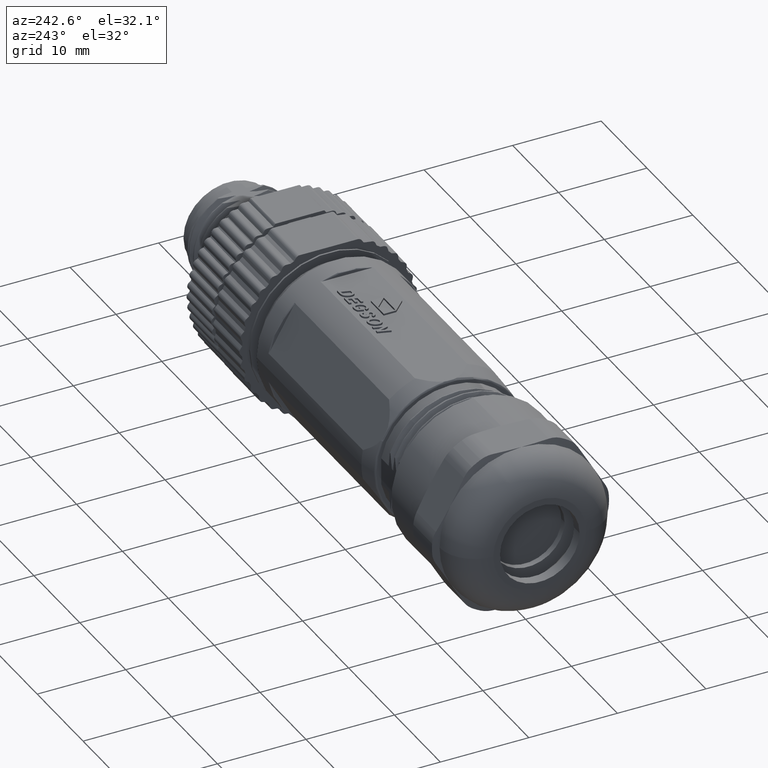
[diagram: clean part render]
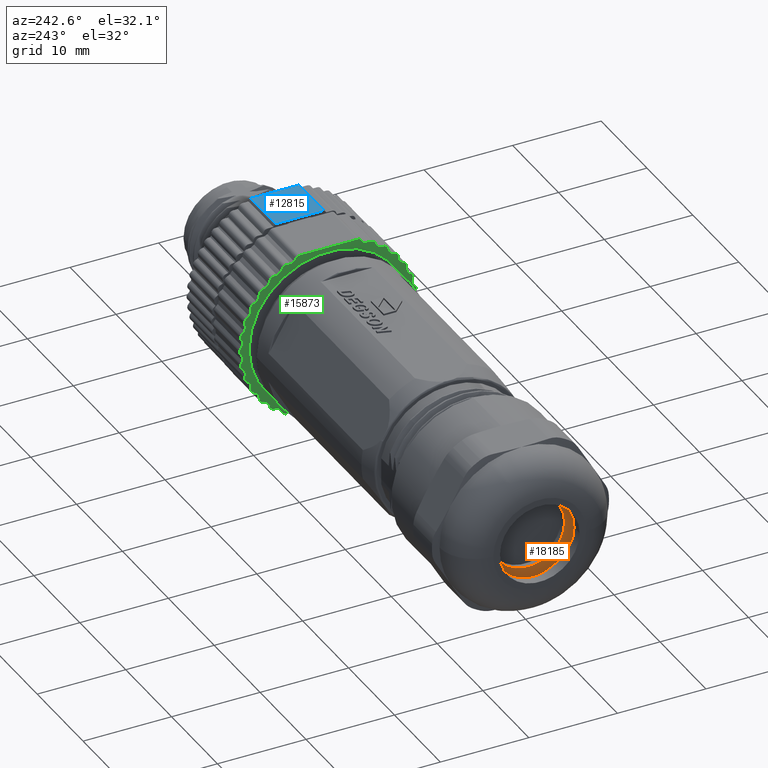
[diagram: same view with three faces highlighted in distinct colors, each labeled with its STEP entity id]
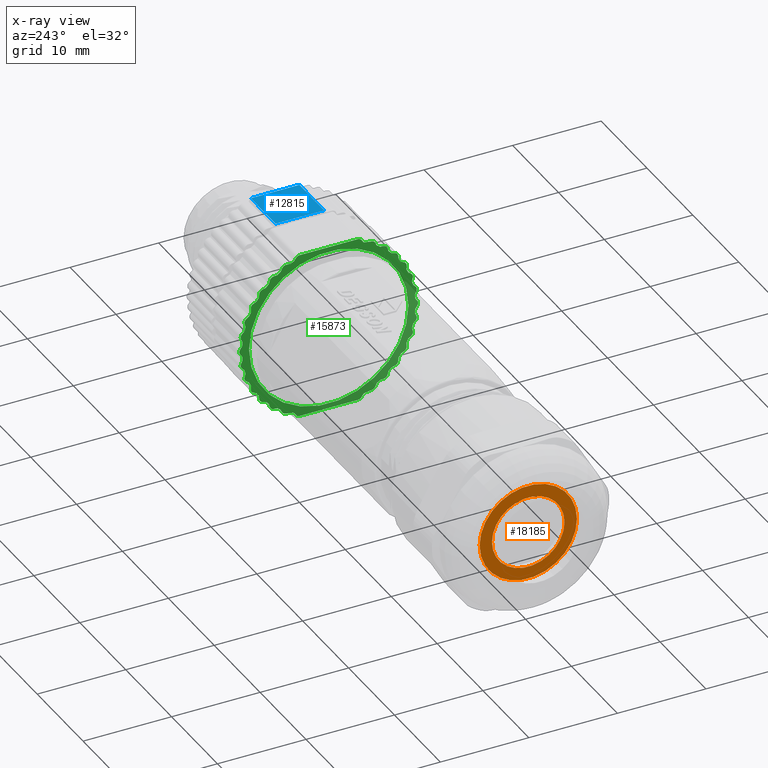
[diagram: x-ray of the same camera — body ghosted, the three highlighted faces saturated]
A machine part, auxiliary view with three faces highlighted in distinct colors.
The next image is the same camera in x-ray (body ghosted, the three faces saturated) — at least one of them is partly hidden behind the body in this view.
Their STEP definitions:

[orange] entity #18185 — the highlighted planar face has unit normal (-1, 0, 0).
#5383=CARTESIAN_POINT('',(-4.057843125851E1,0.E0,0.E0));
#5384=DIRECTION('',(1.E0,0.E0,0.E0));
#5385=DIRECTION('',(0.E0,-1.E0,0.E0));
#5386=AXIS2_PLACEMENT_3D('',#5383,#5384,#5385);
#5397=CARTESIAN_POINT('',(-4.057843125851E1,0.E0,0.E0));
#5398=DIRECTION('',(-1.E0,0.E0,0.E0));
#5399=DIRECTION('',(0.E0,-1.E0,0.E0));
#5400=AXIS2_PLACEMENT_3D('',#5397,#5398,#5399);
#5402=CARTESIAN_POINT('',(-4.057843125851E1,0.E0,0.E0));
#5403=DIRECTION('',(1.E0,0.E0,0.E0));
#5404=DIRECTION('',(0.E0,-1.E0,0.E0));
#5405=AXIS2_PLACEMENT_3D('',#5402,#5403,#5404);
#5407=CARTESIAN_POINT('',(-4.057843125851E1,0.E0,0.E0));
#5408=DIRECTION('',(-1.E0,0.E0,0.E0));
#5409=DIRECTION('',(0.E0,-1.E0,0.E0));
#5410=AXIS2_PLACEMENT_3D('',#5407,#5408,#5409);
#11451=CARTESIAN_POINT('',(-4.057843125851E1,-4.1E0,0.E0));
#11452=CARTESIAN_POINT('',(-4.057843125851E1,4.1E0,0.E0));
#11453=VERTEX_POINT('',#11451);
#11454=VERTEX_POINT('',#11452);
#11455=CARTESIAN_POINT('',(-4.057843125851E1,-5.5E0,0.E0));
#11456=CARTESIAN_POINT('',(-4.057843125851E1,5.5E0,0.E0));
#11457=VERTEX_POINT('',#11455);
#11458=VERTEX_POINT('',#11456);
#18170=CARTESIAN_POINT('',(-4.057843125851E1,0.E0,0.E0));
#18171=DIRECTION('',(-1.E0,0.E0,0.E0));
#18172=DIRECTION('',(0.E0,1.E0,0.E0));
#18173=AXIS2_PLACEMENT_3D('',#18170,#18171,#18172);
#18174=PLANE('',#18173);
#18175=ORIENTED_EDGE('',*,*,#18164,.F.);
#18176=ORIENTED_EDGE('',*,*,#18150,.T.);
#18177=EDGE_LOOP('',(#18175,#18176));
#18178=FACE_OUTER_BOUND('',#18177,.F.);
#18180=ORIENTED_EDGE('',*,*,#18179,.F.);
#18182=ORIENTED_EDGE('',*,*,#18181,.T.);
#18183=EDGE_LOOP('',(#18180,#18182));
#18184=FACE_BOUND('',#18183,.F.);
#18185=ADVANCED_FACE('',(#18178,#18184),#18174,.T.);
#5387=CIRCLE('',#5386,5.5E0);
#5401=CIRCLE('',#5400,5.5E0);
#5406=CIRCLE('',#5405,4.1E0);
#5411=CIRCLE('',#5410,4.1E0);
#18150=EDGE_CURVE('',#11457,#11458,#5387,.T.);
#18164=EDGE_CURVE('',#11457,#11458,#5401,.T.);
#18179=EDGE_CURVE('',#11453,#11454,#5406,.T.);
#18181=EDGE_CURVE('',#11453,#11454,#5411,.T.);

[blue] entity #12815 — the highlighted planar face has unit normal (0, 0, -1).
#932=DIRECTION('',(0.E0,-1.E0,0.E0));
#933=VECTOR('',#932,5.491095777550E0);
#934=CARTESIAN_POINT('',(1.462156874149E1,2.745547888775E0,9.586870070337E0));
#935=LINE('',#934,#933);
#1468=DIRECTION('',(0.E0,-1.E0,0.E0));
#1469=VECTOR('',#1468,5.491095777550E0);
#1470=CARTESIAN_POINT('',(9.221568741490E0,2.745547888775E0,9.586870070337E0));
#1471=LINE('',#1470,#1469);
#2867=DIRECTION('',(-1.E0,0.E0,0.E0));
#2868=VECTOR('',#2867,5.4E0);
#2869=CARTESIAN_POINT('',(1.462156874149E1,-2.745547888775E0,9.586870070337E0));
#2870=LINE('',#2869,#2868);
#2938=DIRECTION('',(-1.E0,0.E0,0.E0));
#2939=VECTOR('',#2938,5.4E0);
#2940=CARTESIAN_POINT('',(1.462156874149E1,2.745547888775E0,9.586870070337E0));
#2941=LINE('',#2940,#2939);
#10643=CARTESIAN_POINT('',(1.462156874149E1,2.745547888775E0,9.586870070337E0));
#10644=CARTESIAN_POINT('',(1.462156874149E1,-2.745547888775E0,
9.586870070337E0));
#10645=VERTEX_POINT('',#10643);
#10646=VERTEX_POINT('',#10644);
#10791=CARTESIAN_POINT('',(9.221568741490E0,-2.745547888775E0,
9.586870070337E0));
#10792=VERTEX_POINT('',#10791);
#10961=CARTESIAN_POINT('',(9.221568741490E0,2.745547888775E0,9.586870070337E0));
#10963=VERTEX_POINT('',#10961);
#12801=CARTESIAN_POINT('',(9.021568741490E0,2.745547888775E0,9.586870070337E0));
#12802=DIRECTION('',(0.E0,0.E0,-1.E0));
#12803=DIRECTION('',(0.E0,-1.E0,0.E0));
#12804=AXIS2_PLACEMENT_3D('',#12801,#12802,#12803);
#12805=PLANE('',#12804);
#12807=ORIENTED_EDGE('',*,*,#12806,.F.);
#12809=ORIENTED_EDGE('',*,*,#12808,.F.);
#12810=ORIENTED_EDGE('',*,*,#12481,.T.);
#12812=ORIENTED_EDGE('',*,*,#12811,.T.);
#12813=EDGE_LOOP('',(#12807,#12809,#12810,#12812));
#12814=FACE_OUTER_BOUND('',#12813,.F.);
#12815=ADVANCED_FACE('',(#12814),#12805,.F.);
#12481=EDGE_CURVE('',#10645,#10646,#935,.T.);
#12806=EDGE_CURVE('',#10963,#10792,#1471,.T.);
#12808=EDGE_CURVE('',#10645,#10963,#2941,.T.);
#12811=EDGE_CURVE('',#10646,#10792,#2870,.T.);

[green] entity #15873 — the highlighted planar face has unit normal (1, 0, 0).
#3468=DIRECTION('',(0.E0,1.E0,0.E0));
#3469=VECTOR('',#3468,6.566786751853E0);
#3470=CARTESIAN_POINT('',(2.921568741490E0,-3.283393375926E0,9.521049159545E0));
#3471=LINE('',#3470,#3469);
#3480=CARTESIAN_POINT('',(2.921568741490E0,-3.283393375926E0,9.021049159545E0));
#3481=DIRECTION('',(-1.E0,0.E0,0.E0));
#3482=DIRECTION('',(0.E0,-8.191520442890E-1,5.735764363511E-1));
#3483=AXIS2_PLACEMENT_3D('',#3480,#3481,#3482);
#3485=DIRECTION('',(0.E0,5.735764363510E-1,8.191520442890E-1));
#3486=VECTOR('',#3485,3.989027154871E-1);
#3487=CARTESIAN_POINT('',(2.921568741490E0,-3.921770596071E0,8.981075402857E0));
#3488=LINE('',#3487,#3486);
#3489=DIRECTION('',(0.E0,9.884683741599E-1,1.514274522195E-1));
#3490=VECTOR('',#3489,7.018331432283E-1);
#3491=CARTESIAN_POINT('',(2.921568741490E0,-4.756422128626E0,8.811941225376E0));
#3492=LINE('',#3491,#3490);
#3493=CARTESIAN_POINT('',(2.921568741490E0,-4.8E0,8.313843876331E0));
#3494=DIRECTION('',(-1.E0,0.E0,0.E0));
#3495=DIRECTION('',(0.E0,-9.063077870366E-1,4.226182617408E-1));
#3496=AXIS2_PLACEMENT_3D('',#3493,#3494,#3495);
#3498=DIRECTION('',(0.E0,4.226182617407E-1,9.063077870367E-1));
#3499=VECTOR('',#3498,3.989027154871E-1);
#3500=CARTESIAN_POINT('',(2.921568741490E0,-5.421737465741E0,8.163624369885E0));
#3501=LINE('',#3500,#3499);
#3502=DIRECTION('',(0.E0,9.961946980917E-1,8.715574274765E-2));
#3503=VECTOR('',#3502,3.989027154871E-1);
#3504=CARTESIAN_POINT('',(2.921568741490E0,-6.214338924365E0,7.852124002988E0));
#3505=LINE('',#3504,#3503);
#3506=CARTESIAN_POINT('',(2.921568741490E0,-6.170761052991E0,7.354026653942E0));
#3507=DIRECTION('',(-1.E0,0.E0,0.E0));
#3508=DIRECTION('',(0.E0,-9.659258262891E-1,2.588190451026E-1));
#3509=AXIS2_PLACEMENT_3D('',#3506,#3507,#3508);
#3511=DIRECTION('',(0.E0,2.588190451025E-1,9.659258262891E-1));
#3512=VECTOR('',#3511,3.989027154871E-1);
#3513=CARTESIAN_POINT('',(2.921568741490E0,-6.756967586047E0,7.098125741428E0));
#3514=LINE('',#3513,#3512);
#3515=DIRECTION('',(0.E0,9.659258262891E-1,2.588190451025E-1));
#3516=VECTOR('',#3515,3.989027154871E-1);
#3517=CARTESIAN_POINT('',(2.921568741490E0,-7.483436176493E0,6.653723966135E0));
#3518=LINE('',#3517,#3516);
#3519=CARTESIAN_POINT('',(2.921568741490E0,-7.354026653942E0,6.170761052991E0));
#3520=DIRECTION('',(-1.E0,0.E0,0.E0));
#3521=DIRECTION('',(0.E0,-9.961946980917E-1,8.715574274770E-2));
#3522=AXIS2_PLACEMENT_3D('',#3519,#3520,#3521);
#3524=DIRECTION('',(0.E0,8.715574274766E-2,9.961946980917E-1));
#3525=VECTOR('',#3524,3.989027154871E-1);
#3526=CARTESIAN_POINT('',(2.921568741490E0,-7.886890665440E0,5.816954154142E0));
#3527=LINE('',#3526,#3525);
#3528=DIRECTION('',(0.E0,9.063077870366E-1,4.226182617407E-1));
#3529=VECTOR('',#3528,3.989027154871E-1);
#3530=CARTESIAN_POINT('',(2.921568741490E0,-8.525153007201E0,5.253153893518E0));
#3531=LINE('',#3530,#3529);
#3532=CARTESIAN_POINT('',(2.921568741490E0,-8.313843876331E0,4.8E0));
#3533=DIRECTION('',(-1.E0,0.E0,0.E0));
#3534=DIRECTION('',(0.E0,-9.961946980917E-1,-8.715574274762E-2));
#3535=AXIS2_PLACEMENT_3D('',#3532,#3533,#3534);
#3537=DIRECTION('',(0.E0,-8.715574274766E-2,9.961946980917E-1));
#3538=VECTOR('',#3537,3.989027154871E-1);
#3539=CARTESIAN_POINT('',(2.921568741490E0,-8.777174562924E0,4.359037358403E0));
#3540=LINE('',#3539,#3538);
#3541=DIRECTION('',(0.E0,8.191520442890E-1,5.735764363510E-1));
#3542=VECTOR('',#3541,3.989027154871E-1);
#3543=CARTESIAN_POINT('',(2.921568741490E0,-9.307837377720E0,3.692969398071E0));
#3544=LINE('',#3543,#3542);
#3545=CARTESIAN_POINT('',(2.921568741490E0,-9.021049159545E0,3.283393375926E0));
#3546=DIRECTION('',(-1.E0,0.E0,0.E0));
#3547=DIRECTION('',(0.E0,-9.659258262891E-1,-2.588190451025E-1));
#3548=AXIS2_PLACEMENT_3D('',#3545,#3546,#3547);
#3550=DIRECTION('',(0.E0,-2.588190451025E-1,9.659258262891E-1));
#3551=VECTOR('',#3550,3.989027154871E-1);
#3552=CARTESIAN_POINT('',(2.921568741490E0,-9.400768452778E0,2.768673418309E0));
#3553=LINE('',#3552,#3551);
#3554=DIRECTION('',(0.E0,7.071067811865E-1,7.071067811865E-1));
#3555=VECTOR('',#3554,3.989027154871E-1);
#3556=CARTESIAN_POINT('',(2.921568741490E0,-9.807707819510E0,2.020575896196E0));
#3557=LINE('',#3556,#3555);
#3558=CARTESIAN_POINT('',(2.921568741490E0,-9.454154428917E0,1.667022505603E0));
#3559=DIRECTION('',(-1.E0,0.E0,0.E0));
#3560=DIRECTION('',(0.E0,-9.063077870367E-1,-4.226182617407E-1));
#3561=AXIS2_PLACEMENT_3D('',#3558,#3559,#3560);
#3563=DIRECTION('',(0.E0,-4.226182617407E-1,9.063077870366E-1));
#3564=VECTOR('',#3563,3.989027154871E-1);
#3565=CARTESIAN_POINT('',(2.921568741490E0,-9.738724750213E0,1.094184737416E0));
#3566=LINE('',#3565,#3564);
#3567=DIRECTION('',(0.E0,5.735764363510E-1,8.191520442890E-1));
#3568=VECTOR('',#3567,3.989027154871E-1);
#3569=CARTESIAN_POINT('',(2.921568741490E0,-1.000957602214E1,
2.867882181755E-1));
#3570=LINE('',#3569,#3568);
#3571=CARTESIAN_POINT('',(2.921568741490E0,-9.6E0,-1.476840843907E-14));
#3572=DIRECTION('',(-1.E0,0.E0,0.E0));
#3573=DIRECTION('',(0.E0,-8.191520442890E-1,-5.735764363510E-1));
#3574=AXIS2_PLACEMENT_3D('',#3571,#3572,#3573);
#3576=DIRECTION('',(0.E0,-5.735764363510E-1,8.191520442890E-1));
#3577=VECTOR('',#3576,3.989027154871E-1);
#3578=CARTESIAN_POINT('',(2.921568741490E0,-9.780774824145E0,
-6.135501930392E-1));
#3579=LINE('',#3578,#3577);
#3580=DIRECTION('',(0.E0,4.226182617407E-1,9.063077870366E-1));
#3581=VECTOR('',#3580,3.989027154871E-1);
#3582=CARTESIAN_POINT('',(2.921568741490E0,-9.907308322436E0,
-1.455713374732E0));
#3583=LINE('',#3582,#3581);
#3584=CARTESIAN_POINT('',(2.921568741490E0,-9.454154428917E0,
-1.667022505603E0));
#3585=DIRECTION('',(-1.E0,0.E0,0.E0));
#3586=DIRECTION('',(0.E0,-7.071067811866E-1,-7.071067811865E-1));
#3587=AXIS2_PLACEMENT_3D('',#3584,#3585,#3586);
#3589=DIRECTION('',(0.E0,-7.071067811865E-1,7.071067811865E-1));
#3590=VECTOR('',#3589,3.989027154871E-1);
#3591=CARTESIAN_POINT('',(2.921568741490E0,-9.525641004356E0,
-2.302642711350E0));
#3592=LINE('',#3591,#3590);
#3593=DIRECTION('',(0.E0,2.588190451025E-1,9.659258262891E-1));
#3594=VECTOR('',#3593,3.989027154871E-1);
#3595=CARTESIAN_POINT('',(2.921568741490E0,-9.504012072689E0,
-3.153983853375E0));
#3596=LINE('',#3595,#3594);
#3597=CARTESIAN_POINT('',(2.921568741490E0,-9.021049159545E0,
-3.283393375926E0));
#3598=DIRECTION('',(-1.E0,0.E0,0.E0));
#3599=DIRECTION('',(0.E0,-5.735764363511E-1,-8.191520442890E-1));
#3600=AXIS2_PLACEMENT_3D('',#3597,#3598,#3599);
#3602=DIRECTION('',(0.E0,-8.191520442890E-1,5.735764363510E-1));
#3603=VECTOR('',#3602,3.989027154871E-1);
#3604=CARTESIAN_POINT('',(2.921568741490E0,-8.981075402857E0,
-3.921770596071E0));
#3605=LINE('',#3604,#3603);
#3606=DIRECTION('',(0.E0,8.715574274766E-2,9.961946980917E-1));
#3607=VECTOR('',#3606,3.989027154871E-1);
#3608=CARTESIAN_POINT('',(2.921568741490E0,-8.811941225376E0,
-4.756422128626E0));
#3609=LINE('',#3608,#3607);
#3610=CARTESIAN_POINT('',(2.921568741490E0,-8.313843876331E0,-4.8E0));
#3611=DIRECTION('',(-1.E0,0.E0,0.E0));
#3612=DIRECTION('',(0.E0,-4.226182617408E-1,-9.063077870366E-1));
#3613=AXIS2_PLACEMENT_3D('',#3610,#3611,#3612);
#3615=DIRECTION('',(0.E0,-9.063077870367E-1,4.226182617407E-1));
#3616=VECTOR('',#3615,3.989027154871E-1);
#3617=CARTESIAN_POINT('',(2.921568741490E0,-8.163624369885E0,
-5.421737465741E0));
#3618=LINE('',#3617,#3616);
#3619=DIRECTION('',(0.E0,-8.715574274766E-2,9.961946980917E-1));
#3620=VECTOR('',#3619,3.989027154871E-1);
#3621=CARTESIAN_POINT('',(2.921568741490E0,-7.852124002988E0,
-6.214338924365E0));
#3622=LINE('',#3621,#3620);
#3623=CARTESIAN_POINT('',(2.921568741490E0,-7.354026653942E0,
-6.170761052991E0));
#3624=DIRECTION('',(-1.E0,0.E0,0.E0));
#3625=DIRECTION('',(0.E0,-2.588190451026E-1,-9.659258262891E-1));
#3626=AXIS2_PLACEMENT_3D('',#3623,#3624,#3625);
#3628=DIRECTION('',(0.E0,-9.659258262891E-1,2.588190451025E-1));
#3629=VECTOR('',#3628,3.989027154871E-1);
#3630=CARTESIAN_POINT('',(2.921568741490E0,-7.098125741428E0,
-6.756967586046E0));
#3631=LINE('',#3630,#3629);
#3632=DIRECTION('',(0.E0,-2.588190451025E-1,9.659258262891E-1));
#3633=VECTOR('',#3632,3.989027154871E-1);
#3634=CARTESIAN_POINT('',(2.921568741490E0,-6.653723966135E0,
-7.483436176493E0));
#3635=LINE('',#3634,#3633);
#3636=CARTESIAN_POINT('',(2.921568741490E0,-6.170761052991E0,
-7.354026653942E0));
#3637=DIRECTION('',(-1.E0,0.E0,0.E0));
#3638=DIRECTION('',(0.E0,-8.715574274770E-2,-9.961946980917E-1));
#3639=AXIS2_PLACEMENT_3D('',#3636,#3637,#3638);
#3641=DIRECTION('',(0.E0,-9.961946980917E-1,8.715574274765E-2));
#3642=VECTOR('',#3641,3.989027154871E-1);
#3643=CARTESIAN_POINT('',(2.921568741490E0,-5.816954154142E0,
-7.886890665440E0));
#3644=LINE('',#3643,#3642);
#3645=DIRECTION('',(0.E0,-4.226182617407E-1,9.063077870367E-1));
#3646=VECTOR('',#3645,3.989027154871E-1);
#3647=CARTESIAN_POINT('',(2.921568741490E0,-5.253153893518E0,
-8.525153007201E0));
#3648=LINE('',#3647,#3646);
#3649=CARTESIAN_POINT('',(2.921568741490E0,-4.8E0,-8.313843876331E0));
#3650=DIRECTION('',(-1.E0,0.E0,0.E0));
#3651=DIRECTION('',(0.E0,8.715574274772E-2,-9.961946980917E-1));
#3652=AXIS2_PLACEMENT_3D('',#3649,#3650,#3651);
#3654=DIRECTION('',(0.E0,-9.884683741599E-1,1.514274522195E-1));
#3655=VECTOR('',#3654,7.018331432282E-1);
#3656=CARTESIAN_POINT('',(2.921568741490E0,-4.062682262608E0,
-8.918218030139E0));
#3657=LINE('',#3656,#3655);
#3658=DIRECTION('',(0.E0,-5.735764363510E-1,8.191520442890E-1));
#3659=VECTOR('',#3658,3.989027154871E-1);
#3660=CARTESIAN_POINT('',(2.921568741490E0,-3.692969398071E0,
-9.307837377720E0));
#3661=LINE('',#3660,#3659);
#3662=CARTESIAN_POINT('',(2.921568741490E0,-3.283393375926E0,
-9.021049159545E0));
#3663=DIRECTION('',(-1.E0,0.E0,0.E0));
#3664=DIRECTION('',(0.E0,-2.069455717901E-13,-1.E0));
#3665=AXIS2_PLACEMENT_3D('',#3662,#3663,#3664);
#3667=CARTESIAN_POINT('',(2.921568741490E0,3.283393375926E0,-9.021049159545E0));
#3668=DIRECTION('',(-1.E0,0.E0,0.E0));
#3669=DIRECTION('',(0.E0,8.191520442890E-1,-5.735764363511E-1));
#3670=AXIS2_PLACEMENT_3D('',#3667,#3668,#3669);
#3672=DIRECTION('',(0.E0,-5.735764363510E-1,-8.191520442890E-1));
#3673=VECTOR('',#3672,3.989027154871E-1);
#3674=CARTESIAN_POINT('',(2.921568741490E0,3.921770596071E0,-8.981075402857E0));
#3675=LINE('',#3674,#3673);
#3676=DIRECTION('',(0.E0,-9.884683741599E-1,-1.514274522195E-1));
#3677=VECTOR('',#3676,7.018331432283E-1);
#3678=CARTESIAN_POINT('',(2.921568741490E0,4.756422128626E0,-8.811941225376E0));
#3679=LINE('',#3678,#3677);
#3680=CARTESIAN_POINT('',(2.921568741490E0,4.8E0,-8.313843876331E0));
#3681=DIRECTION('',(-1.E0,0.E0,0.E0));
#3682=DIRECTION('',(0.E0,9.063077870366E-1,-4.226182617407E-1));
#3683=AXIS2_PLACEMENT_3D('',#3680,#3681,#3682);
#3685=DIRECTION('',(0.E0,-4.226182617407E-1,-9.063077870366E-1));
#3686=VECTOR('',#3685,3.989027154871E-1);
#3687=CARTESIAN_POINT('',(2.921568741490E0,5.421737465741E0,-8.163624369885E0));
#3688=LINE('',#3687,#3686);
#3689=DIRECTION('',(0.E0,-9.961946980917E-1,-8.715574274765E-2));
#3690=VECTOR('',#3689,3.989027154871E-1);
#3691=CARTESIAN_POINT('',(2.921568741490E0,6.214338924365E0,-7.852124002988E0));
#3692=LINE('',#3691,#3690);
#3693=CARTESIAN_POINT('',(2.921568741490E0,6.170761052991E0,-7.354026653942E0));
#3694=DIRECTION('',(-1.E0,0.E0,0.E0));
#3695=DIRECTION('',(0.E0,9.659258262891E-1,-2.588190451026E-1));
#3696=AXIS2_PLACEMENT_3D('',#3693,#3694,#3695);
#3698=DIRECTION('',(0.E0,-2.588190451025E-1,-9.659258262891E-1));
#3699=VECTOR('',#3698,3.989027154871E-1);
#3700=CARTESIAN_POINT('',(2.921568741490E0,6.756967586046E0,-7.098125741428E0));
#3701=LINE('',#3700,#3699);
#3702=DIRECTION('',(0.E0,-9.659258262891E-1,-2.588190451025E-1));
#3703=VECTOR('',#3702,3.989027154871E-1);
#3704=CARTESIAN_POINT('',(2.921568741490E0,7.483436176493E0,-6.653723966135E0));
#3705=LINE('',#3704,#3703);
#3706=CARTESIAN_POINT('',(2.921568741490E0,7.354026653942E0,-6.170761052991E0));
#3707=DIRECTION('',(-1.E0,0.E0,0.E0));
#3708=DIRECTION('',(0.E0,9.961946980917E-1,-8.715574274770E-2));
#3709=AXIS2_PLACEMENT_3D('',#3706,#3707,#3708);
#3711=DIRECTION('',(0.E0,-8.715574274766E-2,-9.961946980917E-1));
#3712=VECTOR('',#3711,3.989027154871E-1);
#3713=CARTESIAN_POINT('',(2.921568741490E0,7.886890665440E0,-5.816954154142E0));
#3714=LINE('',#3713,#3712);
#3715=DIRECTION('',(0.E0,-9.063077870366E-1,-4.226182617407E-1));
#3716=VECTOR('',#3715,3.989027154871E-1);
#3717=CARTESIAN_POINT('',(2.921568741490E0,8.525153007201E0,-5.253153893518E0));
#3718=LINE('',#3717,#3716);
#3719=CARTESIAN_POINT('',(2.921568741490E0,8.313843876331E0,-4.8E0));
#3720=DIRECTION('',(-1.E0,0.E0,0.E0));
#3721=DIRECTION('',(0.E0,9.961946980917E-1,8.715574274762E-2));
#3722=AXIS2_PLACEMENT_3D('',#3719,#3720,#3721);
#3724=DIRECTION('',(0.E0,8.715574274767E-2,-9.961946980917E-1));
#3725=VECTOR('',#3724,3.989027154871E-1);
#3726=CARTESIAN_POINT('',(2.921568741490E0,8.777174562924E0,-4.359037358403E0));
#3727=LINE('',#3726,#3725);
#3728=DIRECTION('',(0.E0,-8.191520442890E-1,-5.735764363510E-1));
#3729=VECTOR('',#3728,3.989027154871E-1);
#3730=CARTESIAN_POINT('',(2.921568741490E0,9.307837377720E0,-3.692969398071E0));
#3731=LINE('',#3730,#3729);
#3732=CARTESIAN_POINT('',(2.921568741490E0,9.021049159545E0,-3.283393375926E0));
#3733=DIRECTION('',(-1.E0,0.E0,0.E0));
#3734=DIRECTION('',(0.E0,9.659258262891E-1,2.588190451025E-1));
#3735=AXIS2_PLACEMENT_3D('',#3732,#3733,#3734);
#3737=DIRECTION('',(0.E0,2.588190451025E-1,-9.659258262891E-1));
#3738=VECTOR('',#3737,3.989027154871E-1);
#3739=CARTESIAN_POINT('',(2.921568741490E0,9.400768452778E0,-2.768673418309E0));
#3740=LINE('',#3739,#3738);
#3741=DIRECTION('',(0.E0,-7.071067811865E-1,-7.071067811865E-1));
#3742=VECTOR('',#3741,3.989027154871E-1);
#3743=CARTESIAN_POINT('',(2.921568741490E0,9.807707819510E0,-2.020575896196E0));
#3744=LINE('',#3743,#3742);
#3745=CARTESIAN_POINT('',(2.921568741490E0,9.454154428917E0,-1.667022505603E0));
#3746=DIRECTION('',(-1.E0,0.E0,0.E0));
#3747=DIRECTION('',(0.E0,9.063077870367E-1,4.226182617407E-1));
#3748=AXIS2_PLACEMENT_3D('',#3745,#3746,#3747);
#3750=DIRECTION('',(0.E0,4.226182617407E-1,-9.063077870366E-1));
#3751=VECTOR('',#3750,3.989027154871E-1);
#3752=CARTESIAN_POINT('',(2.921568741490E0,9.738724750213E0,-1.094184737416E0));
#3753=LINE('',#3752,#3751);
#3754=DIRECTION('',(0.E0,-5.735764363510E-1,-8.191520442890E-1));
#3755=VECTOR('',#3754,3.989027154871E-1);
#3756=CARTESIAN_POINT('',(2.921568741490E0,1.000957602214E1,
-2.867882181755E-1));
#3757=LINE('',#3756,#3755);
#3758=CARTESIAN_POINT('',(2.921568741490E0,9.6E0,1.479290137505E-14));
#3759=DIRECTION('',(-1.E0,0.E0,0.E0));
#3760=DIRECTION('',(0.E0,8.191520442890E-1,5.735764363510E-1));
#3761=AXIS2_PLACEMENT_3D('',#3758,#3759,#3760);
#3763=DIRECTION('',(0.E0,5.735764363510E-1,-8.191520442890E-1));
#3764=VECTOR('',#3763,3.989027154871E-1);
#3765=CARTESIAN_POINT('',(2.921568741490E0,9.780774824145E0,6.135501930392E-1));
#3766=LINE('',#3765,#3764);
#3767=DIRECTION('',(0.E0,-4.226182617407E-1,-9.063077870366E-1));
#3768=VECTOR('',#3767,3.989027154871E-1);
#3769=CARTESIAN_POINT('',(2.921568741490E0,9.907308322436E0,1.455713374732E0));
#3770=LINE('',#3769,#3768);
#3771=CARTESIAN_POINT('',(2.921568741490E0,9.454154428917E0,1.667022505603E0));
#3772=DIRECTION('',(-1.E0,0.E0,0.E0));
#3773=DIRECTION('',(0.E0,7.071067811866E-1,7.071067811865E-1));
#3774=AXIS2_PLACEMENT_3D('',#3771,#3772,#3773);
#3776=DIRECTION('',(0.E0,7.071067811866E-1,-7.071067811865E-1));
#3777=VECTOR('',#3776,3.989027154871E-1);
#3778=CARTESIAN_POINT('',(2.921568741490E0,9.525641004356E0,2.302642711350E0));
#3779=LINE('',#3778,#3777);
#3780=DIRECTION('',(0.E0,-2.588190451025E-1,-9.659258262891E-1));
#3781=VECTOR('',#3780,3.989027154871E-1);
#3782=CARTESIAN_POINT('',(2.921568741490E0,9.504012072689E0,3.153983853375E0));
#3783=LINE('',#3782,#3781);
#3784=CARTESIAN_POINT('',(2.921568741490E0,9.021049159545E0,3.283393375926E0));
#3785=DIRECTION('',(-1.E0,0.E0,0.E0));
#3786=DIRECTION('',(0.E0,5.735764363511E-1,8.191520442890E-1));
#3787=AXIS2_PLACEMENT_3D('',#3784,#3785,#3786);
#3789=DIRECTION('',(0.E0,8.191520442890E-1,-5.735764363510E-1));
#3790=VECTOR('',#3789,3.989027154871E-1);
#3791=CARTESIAN_POINT('',(2.921568741490E0,8.981075402857E0,3.921770596071E0));
#3792=LINE('',#3791,#3790);
#3793=DIRECTION('',(0.E0,-8.715574274767E-2,-9.961946980917E-1));
#3794=VECTOR('',#3793,3.989027154871E-1);
#3795=CARTESIAN_POINT('',(2.921568741490E0,8.811941225376E0,4.756422128626E0));
#3796=LINE('',#3795,#3794);
#3797=CARTESIAN_POINT('',(2.921568741490E0,8.313843876331E0,4.8E0));
#3798=DIRECTION('',(-1.E0,0.E0,0.E0));
#3799=DIRECTION('',(0.E0,4.226182617408E-1,9.063077870366E-1));
#3800=AXIS2_PLACEMENT_3D('',#3797,#3798,#3799);
#3802=DIRECTION('',(0.E0,9.063077870367E-1,-4.226182617407E-1));
#3803=VECTOR('',#3802,3.989027154871E-1);
#3804=CARTESIAN_POINT('',(2.921568741490E0,8.163624369885E0,5.421737465741E0));
#3805=LINE('',#3804,#3803);
#3806=DIRECTION('',(0.E0,8.715574274766E-2,-9.961946980917E-1));
#3807=VECTOR('',#3806,3.989027154871E-1);
#3808=CARTESIAN_POINT('',(2.921568741490E0,7.852124002988E0,6.214338924365E0));
#3809=LINE('',#3808,#3807);
#3810=CARTESIAN_POINT('',(2.921568741490E0,7.354026653942E0,6.170761052991E0));
#3811=DIRECTION('',(-1.E0,0.E0,0.E0));
#3812=DIRECTION('',(0.E0,2.588190451026E-1,9.659258262891E-1));
#3813=AXIS2_PLACEMENT_3D('',#3810,#3811,#3812);
#3815=DIRECTION('',(0.E0,9.659258262891E-1,-2.588190451025E-1));
#3816=VECTOR('',#3815,3.989027154871E-1);
#3817=CARTESIAN_POINT('',(2.921568741490E0,7.098125741428E0,6.756967586046E0));
#3818=LINE('',#3817,#3816);
#3819=DIRECTION('',(0.E0,2.588190451025E-1,-9.659258262891E-1));
#3820=VECTOR('',#3819,3.989027154871E-1);
#3821=CARTESIAN_POINT('',(2.921568741490E0,6.653723966135E0,7.483436176493E0));
#3822=LINE('',#3821,#3820);
#3823=CARTESIAN_POINT('',(2.921568741490E0,6.170761052991E0,7.354026653942E0));
#3824=DIRECTION('',(-1.E0,0.E0,0.E0));
#3825=DIRECTION('',(0.E0,8.715574274770E-2,9.961946980917E-1));
#3826=AXIS2_PLACEMENT_3D('',#3823,#3824,#3825);
#3828=DIRECTION('',(0.E0,9.961946980917E-1,-8.715574274765E-2));
#3829=VECTOR('',#3828,3.989027154871E-1);
#3830=CARTESIAN_POINT('',(2.921568741490E0,5.816954154142E0,7.886890665440E0));
#3831=LINE('',#3830,#3829);
#3832=DIRECTION('',(0.E0,4.226182617407E-1,-9.063077870367E-1));
#3833=VECTOR('',#3832,3.989027154871E-1);
#3834=CARTESIAN_POINT('',(2.921568741490E0,5.253153893518E0,8.525153007201E0));
#3835=LINE('',#3834,#3833);
#3836=CARTESIAN_POINT('',(2.921568741490E0,4.8E0,8.313843876331E0));
#3837=DIRECTION('',(-1.E0,0.E0,0.E0));
#3838=DIRECTION('',(0.E0,-8.715574274742E-2,9.961946980918E-1));
#3839=AXIS2_PLACEMENT_3D('',#3836,#3837,#3838);
#3841=DIRECTION('',(0.E0,1.E0,0.E0));
#3842=VECTOR('',#3841,4.681017300890E-1);
#3843=CARTESIAN_POINT('',(2.921568741490E0,4.288320398537E0,8.811941225376E0));
#3844=LINE('',#3843,#3842);
#3845=DIRECTION('',(0.E0,5.735764363510E-1,-8.191520442890E-1));
#3846=VECTOR('',#3845,3.989027154871E-1);
#3847=CARTESIAN_POINT('',(2.921568741490E0,3.692969398071E0,9.307837377720E0));
#3848=LINE('',#3847,#3846);
#3849=CARTESIAN_POINT('',(2.921568741490E0,3.283393375926E0,9.021049159545E0));
#3850=DIRECTION('',(-1.E0,0.E0,0.E0));
#3851=DIRECTION('',(0.E0,5.684341886081E-14,1.E0));
#3852=AXIS2_PLACEMENT_3D('',#3849,#3850,#3851);
#3854=CARTESIAN_POINT('',(2.921568741490E0,0.E0,0.E0));
#3855=DIRECTION('',(-1.E0,0.E0,0.E0));
#3856=DIRECTION('',(0.E0,1.E0,0.E0));
#3857=AXIS2_PLACEMENT_3D('',#3854,#3855,#3856);
#3859=CARTESIAN_POINT('',(2.921568741490E0,0.E0,0.E0));
#3860=DIRECTION('',(-1.E0,0.E0,0.E0));
#3861=DIRECTION('',(0.E0,-1.E0,0.E0));
#3862=AXIS2_PLACEMENT_3D('',#3859,#3860,#3861);
#3868=CARTESIAN_POINT('',(2.921568741490E0,0.E0,0.E0));
#3869=DIRECTION('',(-1.E0,0.E0,0.E0));
#3870=DIRECTION('',(0.E0,-4.145594145518E-1,9.100222479733E-1));
#3871=AXIS2_PLACEMENT_3D('',#3868,#3869,#3870);
#3903=CARTESIAN_POINT('',(2.921568741490E0,0.E0,0.E0));
#3904=DIRECTION('',(-1.E0,0.E0,0.E0));
#3905=DIRECTION('',(0.E0,-5.935667504226E-1,8.047847617796E-1));
#3906=AXIS2_PLACEMENT_3D('',#3903,#3904,#3905);
#3929=CARTESIAN_POINT('',(2.921568741490E0,0.E0,0.E0));
#3930=DIRECTION('',(-1.E0,0.E0,0.E0));
#3931=DIRECTION('',(0.E0,-7.242985450436E-1,6.894864883721E-1));
#3932=AXIS2_PLACEMENT_3D('',#3929,#3930,#3931);
#3955=CARTESIAN_POINT('',(2.921568741490E0,0.E0,0.E0));
#3956=DIRECTION('',(-1.E0,0.E0,0.E0));
#3957=DIRECTION('',(0.E0,-8.330228948862E-1,5.532385169124E-1));
#3958=AXIS2_PLACEMENT_3D('',#3955,#3956,#3957);
#3981=CARTESIAN_POINT('',(2.921568741490E0,0.E0,0.E0));
#3982=DIRECTION('',(-1.E0,0.E0,0.E0));
#3983=DIRECTION('',(0.E0,-9.164362655976E-1,4.001806730684E-1));
#3984=AXIS2_PLACEMENT_3D('',#3981,#3982,#3983);
#4007=CARTESIAN_POINT('',(2.921568741490E0,0.E0,0.E0));
#4008=DIRECTION('',(-1.E0,0.E0,0.E0));
#4009=DIRECTION('',(0.E0,-9.720041841179E-1,2.349635419745E-1));
#4010=AXIS2_PLACEMENT_3D('',#4007,#4008,#4009);
#4033=CARTESIAN_POINT('',(2.921568741490E0,0.E0,0.E0));
#4034=DIRECTION('',(-1.E0,0.E0,0.E0));
#4035=DIRECTION('',(0.E0,-9.980382473617E-1,6.260716255502E-2));
#4036=AXIS2_PLACEMENT_3D('',#4033,#4034,#4035);
#4059=CARTESIAN_POINT('',(2.921568741490E0,0.E0,0.E0));
#4060=DIRECTION('',(-1.E0,0.E0,0.E0));
#4061=DIRECTION('',(0.E0,-9.937474234911E-1,-1.116515038180E-1));
#4062=AXIS2_PLACEMENT_3D('',#4059,#4060,#4061);
#4085=CARTESIAN_POINT('',(2.921568741490E0,0.E0,0.E0));
#4086=DIRECTION('',(-1.E0,0.E0,0.E0));
#4087=DIRECTION('',(0.E0,-9.592620870182E-1,-2.825176957458E-1));
#4088=AXIS2_PLACEMENT_3D('',#4085,#4086,#4087);
#4111=CARTESIAN_POINT('',(2.921568741490E0,0.E0,0.E0));
#4112=DIRECTION('',(-1.E0,0.E0,0.E0));
#4113=DIRECTION('',(0.E0,-8.956300574412E-1,-4.447997304493E-1));
#4114=AXIS2_PLACEMENT_3D('',#4111,#4112,#4113);
#4137=CARTESIAN_POINT('',(2.921568741490E0,0.E0,0.E0));
#4138=DIRECTION('',(-1.E0,0.E0,0.E0));
#4139=DIRECTION('',(0.E0,-8.047847617796E-1,-5.935667504226E-1));
#4140=AXIS2_PLACEMENT_3D('',#4137,#4138,#4139);
#4163=CARTESIAN_POINT('',(2.921568741490E0,0.E0,0.E0));
#4164=DIRECTION('',(-1.E0,0.E0,0.E0));
#4165=DIRECTION('',(0.E0,-6.894864883721E-1,-7.242985450436E-1));
#4166=AXIS2_PLACEMENT_3D('',#4163,#4164,#4165);
#4189=CARTESIAN_POINT('',(2.921568741490E0,0.E0,0.E0));
#4190=DIRECTION('',(-1.E0,0.E0,0.E0));
#4191=DIRECTION('',(0.E0,-5.532385169124E-1,-8.330228948862E-1));
#4192=AXIS2_PLACEMENT_3D('',#4189,#4190,#4191);
#4215=CARTESIAN_POINT('',(2.921568741490E0,0.E0,0.E0));
#4216=DIRECTION('',(-1.E0,0.E0,0.E0));
#4217=DIRECTION('',(0.E0,-4.001806730684E-1,-9.164362655976E-1));
#4218=AXIS2_PLACEMENT_3D('',#4215,#4216,#4217);
#4232=DIRECTION('',(0.E0,-1.E0,0.E0));
#4233=VECTOR('',#4232,6.566786751853E0);
#4234=CARTESIAN_POINT('',(2.921568741490E0,3.283393375926E0,-9.521049159545E0));
#4235=LINE('',#4234,#4233);
#4248=CARTESIAN_POINT('',(2.921568741490E0,0.E0,0.E0));
#4249=DIRECTION('',(-1.E0,0.E0,0.E0));
#4250=DIRECTION('',(0.E0,4.145594145518E-1,-9.100222479733E-1));
#4251=AXIS2_PLACEMENT_3D('',#4248,#4249,#4250);
#4283=CARTESIAN_POINT('',(2.921568741490E0,0.E0,0.E0));
#4284=DIRECTION('',(-1.E0,0.E0,0.E0));
#4285=DIRECTION('',(0.E0,5.935667504226E-1,-8.047847617796E-1));
#4286=AXIS2_PLACEMENT_3D('',#4283,#4284,#4285);
#4309=CARTESIAN_POINT('',(2.921568741490E0,0.E0,0.E0));
#4310=DIRECTION('',(-1.E0,0.E0,0.E0));
#4311=DIRECTION('',(0.E0,7.242985450436E-1,-6.894864883721E-1));
#4312=AXIS2_PLACEMENT_3D('',#4309,#4310,#4311);
#4335=CARTESIAN_POINT('',(2.921568741490E0,0.E0,0.E0));
#4336=DIRECTION('',(-1.E0,0.E0,0.E0));
#4337=DIRECTION('',(0.E0,8.330228948862E-1,-5.532385169124E-1));
#4338=AXIS2_PLACEMENT_3D('',#4335,#4336,#4337);
#4361=CARTESIAN_POINT('',(2.921568741490E0,0.E0,0.E0));
#4362=DIRECTION('',(-1.E0,0.E0,0.E0));
#4363=DIRECTION('',(0.E0,9.164362655976E-1,-4.001806730684E-1));
#4364=AXIS2_PLACEMENT_3D('',#4361,#4362,#4363);
#4387=CARTESIAN_POINT('',(2.921568741490E0,0.E0,0.E0));
#4388=DIRECTION('',(-1.E0,0.E0,0.E0));
#4389=DIRECTION('',(0.E0,9.720041841179E-1,-2.349635419745E-1));
#4390=AXIS2_PLACEMENT_3D('',#4387,#4388,#4389);
#4413=CARTESIAN_POINT('',(2.921568741490E0,0.E0,0.E0));
#4414=DIRECTION('',(-1.E0,0.E0,0.E0));
#4415=DIRECTION('',(0.E0,9.980382473617E-1,-6.260716255502E-2));
#4416=AXIS2_PLACEMENT_3D('',#4413,#4414,#4415);
#4439=CARTESIAN_POINT('',(2.921568741490E0,0.E0,0.E0));
#4440=DIRECTION('',(-1.E0,0.E0,0.E0));
#4441=DIRECTION('',(0.E0,9.937474234911E-1,1.116515038180E-1));
#4442=AXIS2_PLACEMENT_3D('',#4439,#4440,#4441);
#4465=CARTESIAN_POINT('',(2.921568741490E0,0.E0,0.E0));
#4466=DIRECTION('',(-1.E0,0.E0,0.E0));
#4467=DIRECTION('',(0.E0,9.592620870182E-1,2.825176957458E-1));
#4468=AXIS2_PLACEMENT_3D('',#4465,#4466,#4467);
#4491=CARTESIAN_POINT('',(2.921568741490E0,0.E0,0.E0));
#4492=DIRECTION('',(-1.E0,0.E0,0.E0));
#4493=DIRECTION('',(0.E0,8.956300574412E-1,4.447997304493E-1));
#4494=AXIS2_PLACEMENT_3D('',#4491,#4492,#4493);
#4517=CARTESIAN_POINT('',(2.921568741490E0,0.E0,0.E0));
#4518=DIRECTION('',(-1.E0,0.E0,0.E0));
#4519=DIRECTION('',(0.E0,8.047847617796E-1,5.935667504226E-1));
#4520=AXIS2_PLACEMENT_3D('',#4517,#4518,#4519);
#4543=CARTESIAN_POINT('',(2.921568741490E0,0.E0,0.E0));
#4544=DIRECTION('',(-1.E0,0.E0,0.E0));
#4545=DIRECTION('',(0.E0,6.894864883721E-1,7.242985450436E-1));
#4546=AXIS2_PLACEMENT_3D('',#4543,#4544,#4545);
#4569=CARTESIAN_POINT('',(2.921568741490E0,0.E0,0.E0));
#4570=DIRECTION('',(-1.E0,0.E0,0.E0));
#4571=DIRECTION('',(0.E0,5.532385169124E-1,8.330228948862E-1));
#4572=AXIS2_PLACEMENT_3D('',#4569,#4570,#4571);
#4595=CARTESIAN_POINT('',(2.921568741490E0,0.E0,0.E0));
#4596=DIRECTION('',(-1.E0,0.E0,0.E0));
#4597=DIRECTION('',(0.E0,4.001806730684E-1,9.164362655976E-1));
#4598=AXIS2_PLACEMENT_3D('',#4595,#4596,#4597);
#10983=CARTESIAN_POINT('',(2.921568741490E0,9.E0,-2.827904029738E-14));
#10984=VERTEX_POINT('',#10983);
#10985=CARTESIAN_POINT('',(2.921568741490E0,-9.E0,3.760491370423E-14));
#10986=VERTEX_POINT('',#10985);
#10987=CARTESIAN_POINT('',(2.921568741490E0,3.692969398071E0,9.307837377720E0));
#10989=VERTEX_POINT('',#10987);
#10992=CARTESIAN_POINT('',(2.921568741490E0,3.921770596071E0,8.981075402857E0));
#10994=VERTEX_POINT('',#10992);
#10995=CARTESIAN_POINT('',(2.921568741490E0,5.253153893518E0,8.525153007201E0));
#10997=VERTEX_POINT('',#10995);
#11000=CARTESIAN_POINT('',(2.921568741490E0,5.421737465741E0,8.163624369885E0));
#11002=VERTEX_POINT('',#11000);
#11003=CARTESIAN_POINT('',(2.921568741490E0,6.214338924365E0,7.852124002988E0));
#11004=CARTESIAN_POINT('',(2.921568741490E0,6.653723966135E0,7.483436176493E0));
#11005=VERTEX_POINT('',#11003);
#11006=VERTEX_POINT('',#11004);
#11012=CARTESIAN_POINT('',(2.921568741490E0,5.816954154142E0,7.886890665440E0));
#11014=VERTEX_POINT('',#11012);
#11016=CARTESIAN_POINT('',(2.921568741490E0,6.756967586046E0,7.098125741428E0));
#11018=VERTEX_POINT('',#11016);
#11019=CARTESIAN_POINT('',(2.921568741490E0,7.483436176493E0,6.653723966135E0));
#11020=CARTESIAN_POINT('',(2.921568741490E0,7.852124002988E0,6.214338924365E0));
#11021=VERTEX_POINT('',#11019);
#11022=VERTEX_POINT('',#11020);
#11028=CARTESIAN_POINT('',(2.921568741490E0,7.098125741428E0,6.756967586046E0));
#11030=VERTEX_POINT('',#11028);
#11032=CARTESIAN_POINT('',(2.921568741490E0,7.886890665440E0,5.816954154142E0));
#11034=VERTEX_POINT('',#11032);
#11035=CARTESIAN_POINT('',(2.921568741490E0,8.525153007201E0,5.253153893518E0));
#11036=CARTESIAN_POINT('',(2.921568741490E0,8.811941225376E0,4.756422128626E0));
#11037=VERTEX_POINT('',#11035);
#11038=VERTEX_POINT('',#11036);
#11044=CARTESIAN_POINT('',(2.921568741490E0,8.163624369885E0,5.421737465741E0));
#11046=VERTEX_POINT('',#11044);
#11048=CARTESIAN_POINT('',(2.921568741490E0,8.777174562924E0,4.359037358404E0));
#11050=VERTEX_POINT('',#11048);
#11051=CARTESIAN_POINT('',(2.921568741490E0,9.307837377720E0,3.692969398071E0));
#11052=CARTESIAN_POINT('',(2.921568741490E0,9.504012072689E0,3.153983853375E0));
#11053=VERTEX_POINT('',#11051);
#11054=VERTEX_POINT('',#11052);
#11060=CARTESIAN_POINT('',(2.921568741490E0,8.981075402857E0,3.921770596071E0));
#11062=VERTEX_POINT('',#11060);
#11064=CARTESIAN_POINT('',(2.921568741490E0,9.400768452778E0,2.768673418309E0));
#11066=VERTEX_POINT('',#11064);
#11067=CARTESIAN_POINT('',(2.921568741490E0,9.807707819510E0,2.020575896196E0));
#11068=CARTESIAN_POINT('',(2.921568741490E0,9.907308322436E0,1.455713374732E0));
#11069=VERTEX_POINT('',#11067);
#11070=VERTEX_POINT('',#11068);
#11076=CARTESIAN_POINT('',(2.921568741490E0,9.525641004356E0,2.302642711350E0));
#11078=VERTEX_POINT('',#11076);
#11080=CARTESIAN_POINT('',(2.921568741490E0,9.738724750213E0,1.094184737416E0));
#11082=VERTEX_POINT('',#11080);
#11083=CARTESIAN_POINT('',(2.921568741490E0,1.000957602214E1,
2.867882181755E-1));
#11084=CARTESIAN_POINT('',(2.921568741490E0,1.000957602214E1,
-2.867882181755E-1));
#11085=VERTEX_POINT('',#11083);
#11086=VERTEX_POINT('',#11084);
#11092=CARTESIAN_POINT('',(2.921568741490E0,9.780774824145E0,
6.135501930392E-1));
#11094=VERTEX_POINT('',#11092);
#11096=CARTESIAN_POINT('',(2.921568741490E0,9.780774824145E0,
-6.135501930392E-1));
#11098=VERTEX_POINT('',#11096);
#11099=CARTESIAN_POINT('',(2.921568741490E0,9.907308322436E0,
-1.455713374732E0));
#11100=CARTESIAN_POINT('',(2.921568741490E0,9.807707819510E0,
-2.020575896196E0));
#11101=VERTEX_POINT('',#11099);
#11102=VERTEX_POINT('',#11100);
#11108=CARTESIAN_POINT('',(2.921568741490E0,9.738724750213E0,
-1.094184737416E0));
#11110=VERTEX_POINT('',#11108);
#11112=CARTESIAN_POINT('',(2.921568741490E0,9.525641004356E0,
-2.302642711350E0));
#11114=VERTEX_POINT('',#11112);
#11115=CARTESIAN_POINT('',(2.921568741490E0,9.504012072689E0,
-3.153983853375E0));
#11116=CARTESIAN_POINT('',(2.921568741490E0,9.307837377720E0,
-3.692969398071E0));
#11117=VERTEX_POINT('',#11115);
#11118=VERTEX_POINT('',#11116);
#11124=CARTESIAN_POINT('',(2.921568741490E0,9.400768452778E0,
-2.768673418309E0));
#11126=VERTEX_POINT('',#11124);
#11128=CARTESIAN_POINT('',(2.921568741490E0,8.981075402857E0,
-3.921770596071E0));
#11130=VERTEX_POINT('',#11128);
#11131=CARTESIAN_POINT('',(2.921568741490E0,8.811941225376E0,
-4.756422128626E0));
#11132=CARTESIAN_POINT('',(2.921568741490E0,8.525153007201E0,
-5.253153893518E0));
#11133=VERTEX_POINT('',#11131);
#11134=VERTEX_POINT('',#11132);
#11140=CARTESIAN_POINT('',(2.921568741490E0,8.777174562924E0,
-4.359037358403E0));
#11142=VERTEX_POINT('',#11140);
#11144=CARTESIAN_POINT('',(2.921568741490E0,8.163624369885E0,
-5.421737465741E0));
#11146=VERTEX_POINT('',#11144);
#11147=CARTESIAN_POINT('',(2.921568741490E0,7.852124002988E0,
-6.214338924365E0));
#11148=CARTESIAN_POINT('',(2.921568741490E0,7.483436176493E0,
-6.653723966135E0));
#11149=VERTEX_POINT('',#11147);
#11150=VERTEX_POINT('',#11148);
#11156=CARTESIAN_POINT('',(2.921568741490E0,7.886890665440E0,
-5.816954154142E0));
#11158=VERTEX_POINT('',#11156);
#11160=CARTESIAN_POINT('',(2.921568741490E0,7.098125741428E0,
-6.756967586046E0));
#11162=VERTEX_POINT('',#11160);
#11163=CARTESIAN_POINT('',(2.921568741490E0,6.653723966135E0,
-7.483436176493E0));
#11164=CARTESIAN_POINT('',(2.921568741490E0,6.214338924365E0,
-7.852124002988E0));
#11165=VERTEX_POINT('',#11163);
#11166=VERTEX_POINT('',#11164);
#11172=CARTESIAN_POINT('',(2.921568741490E0,6.756967586046E0,
-7.098125741428E0));
#11174=VERTEX_POINT('',#11172);
#11176=CARTESIAN_POINT('',(2.921568741490E0,5.816954154142E0,
-7.886890665440E0));
#11178=VERTEX_POINT('',#11176);
#11179=CARTESIAN_POINT('',(2.921568741490E0,5.253153893518E0,
-8.525153007201E0));
#11181=VERTEX_POINT('',#11179);
#11184=CARTESIAN_POINT('',(2.921568741490E0,5.421737465741E0,
-8.163624369885E0));
#11186=VERTEX_POINT('',#11184);
#11187=CARTESIAN_POINT('',(2.921568741490E0,3.692969398071E0,
-9.307837377720E0));
#11189=VERTEX_POINT('',#11187);
#11192=CARTESIAN_POINT('',(2.921568741490E0,3.921770596071E0,
-8.981075402857E0));
#11194=VERTEX_POINT('',#11192);
#11195=CARTESIAN_POINT('',(2.921568741490E0,-3.692969398071E0,
-9.307837377720E0));
#11197=VERTEX_POINT('',#11195);
#11200=CARTESIAN_POINT('',(2.921568741490E0,-3.921770596071E0,
-8.981075402857E0));
#11202=VERTEX_POINT('',#11200);
#11203=CARTESIAN_POINT('',(2.921568741490E0,-5.253153893518E0,
-8.525153007201E0));
#11205=VERTEX_POINT('',#11203);
#11208=CARTESIAN_POINT('',(2.921568741490E0,-5.421737465741E0,
-8.163624369885E0));
#11210=VERTEX_POINT('',#11208);
#11211=CARTESIAN_POINT('',(2.921568741490E0,-6.214338924365E0,
-7.852124002988E0));
#11212=CARTESIAN_POINT('',(2.921568741490E0,-6.653723966135E0,
-7.483436176493E0));
#11213=VERTEX_POINT('',#11211);
#11214=VERTEX_POINT('',#11212);
#11220=CARTESIAN_POINT('',(2.921568741490E0,-5.816954154142E0,
-7.886890665440E0));
#11222=VERTEX_POINT('',#11220);
#11224=CARTESIAN_POINT('',(2.921568741490E0,-6.756967586046E0,
-7.098125741428E0));
#11226=VERTEX_POINT('',#11224);
#11227=CARTESIAN_POINT('',(2.921568741490E0,-7.483436176493E0,
-6.653723966135E0));
#11228=CARTESIAN_POINT('',(2.921568741490E0,-7.852124002988E0,
-6.214338924365E0));
#11229=VERTEX_POINT('',#11227);
#11230=VERTEX_POINT('',#11228);
#11236=CARTESIAN_POINT('',(2.921568741490E0,-7.098125741428E0,
-6.756967586046E0));
#11238=VERTEX_POINT('',#11236);
#11240=CARTESIAN_POINT('',(2.921568741490E0,-7.886890665440E0,
-5.816954154142E0));
#11242=VERTEX_POINT('',#11240);
#11243=CARTESIAN_POINT('',(2.921568741490E0,-8.525153007201E0,
-5.253153893518E0));
#11244=CARTESIAN_POINT('',(2.921568741490E0,-8.811941225376E0,
-4.756422128626E0));
#11245=VERTEX_POINT('',#11243);
#11246=VERTEX_POINT('',#11244);
#11252=CARTESIAN_POINT('',(2.921568741490E0,-8.163624369885E0,
-5.421737465741E0));
#11254=VERTEX_POINT('',#11252);
#11256=CARTESIAN_POINT('',(2.921568741490E0,-8.777174562924E0,
-4.359037358404E0));
#11258=VERTEX_POINT('',#11256);
#11259=CARTESIAN_POINT('',(2.921568741490E0,-9.307837377720E0,
-3.692969398071E0));
#11260=CARTESIAN_POINT('',(2.921568741490E0,-9.504012072689E0,
-3.153983853375E0));
#11261=VERTEX_POINT('',#11259);
#11262=VERTEX_POINT('',#11260);
#11268=CARTESIAN_POINT('',(2.921568741490E0,-8.981075402857E0,
-3.921770596071E0));
#11270=VERTEX_POINT('',#11268);
#11272=CARTESIAN_POINT('',(2.921568741490E0,-9.400768452778E0,
-2.768673418309E0));
#11274=VERTEX_POINT('',#11272);
#11275=CARTESIAN_POINT('',(2.921568741490E0,-9.807707819510E0,
-2.020575896196E0));
#11276=CARTESIAN_POINT('',(2.921568741490E0,-9.907308322436E0,
-1.455713374732E0));
#11277=VERTEX_POINT('',#11275);
#11278=VERTEX_POINT('',#11276);
#11284=CARTESIAN_POINT('',(2.921568741490E0,-9.525641004356E0,
-2.302642711350E0));
#11286=VERTEX_POINT('',#11284);
#11288=CARTESIAN_POINT('',(2.921568741490E0,-9.738724750213E0,
-1.094184737416E0));
#11290=VERTEX_POINT('',#11288);
#11291=CARTESIAN_POINT('',(2.921568741490E0,-1.000957602214E1,
-2.867882181755E-1));
#11292=CARTESIAN_POINT('',(2.921568741490E0,-1.000957602214E1,
2.867882181755E-1));
#11293=VERTEX_POINT('',#11291);
#11294=VERTEX_POINT('',#11292);
#11300=CARTESIAN_POINT('',(2.921568741490E0,-9.780774824145E0,
-6.135501930392E-1));
#11302=VERTEX_POINT('',#11300);
#11304=CARTESIAN_POINT('',(2.921568741490E0,-9.780774824145E0,
6.135501930392E-1));
#11306=VERTEX_POINT('',#11304);
#11307=CARTESIAN_POINT('',(2.921568741490E0,-9.907308322436E0,
1.455713374732E0));
#11308=CARTESIAN_POINT('',(2.921568741490E0,-9.807707819510E0,
2.020575896196E0));
#11309=VERTEX_POINT('',#11307);
#11310=VERTEX_POINT('',#11308);
#11316=CARTESIAN_POINT('',(2.921568741490E0,-9.738724750213E0,
1.094184737416E0));
#11318=VERTEX_POINT('',#11316);
#11320=CARTESIAN_POINT('',(2.921568741490E0,-9.525641004356E0,
2.302642711350E0));
#11322=VERTEX_POINT('',#11320);
#11323=CARTESIAN_POINT('',(2.921568741490E0,-9.504012072689E0,
3.153983853375E0));
#11324=CARTESIAN_POINT('',(2.921568741490E0,-9.307837377720E0,
3.692969398071E0));
#11325=VERTEX_POINT('',#11323);
#11326=VERTEX_POINT('',#11324);
#11332=CARTESIAN_POINT('',(2.921568741490E0,-9.400768452778E0,
2.768673418309E0));
#11334=VERTEX_POINT('',#11332);
#11336=CARTESIAN_POINT('',(2.921568741490E0,-8.981075402857E0,
3.921770596071E0));
#11338=VERTEX_POINT('',#11336);
#11339=CARTESIAN_POINT('',(2.921568741490E0,-8.811941225376E0,
4.756422128626E0));
#11340=CARTESIAN_POINT('',(2.921568741490E0,-8.525153007201E0,
5.253153893518E0));
#11341=VERTEX_POINT('',#11339);
#11342=VERTEX_POINT('',#11340);
#11348=CARTESIAN_POINT('',(2.921568741490E0,-8.777174562924E0,
4.359037358403E0));
#11350=VERTEX_POINT('',#11348);
#11352=CARTESIAN_POINT('',(2.921568741490E0,-8.163624369885E0,
5.421737465741E0));
#11354=VERTEX_POINT('',#11352);
#11355=CARTESIAN_POINT('',(2.921568741490E0,-7.852124002988E0,
6.214338924365E0));
#11356=CARTESIAN_POINT('',(2.921568741490E0,-7.483436176493E0,
6.653723966135E0));
#11357=VERTEX_POINT('',#11355);
#11358=VERTEX_POINT('',#11356);
#11364=CARTESIAN_POINT('',(2.921568741490E0,-7.886890665440E0,
5.816954154142E0));
#11366=VERTEX_POINT('',#11364);
#11368=CARTESIAN_POINT('',(2.921568741490E0,-7.098125741428E0,
6.756967586046E0));
#11370=VERTEX_POINT('',#11368);
#11371=CARTESIAN_POINT('',(2.921568741490E0,-6.653723966135E0,
7.483436176493E0));
#11372=CARTESIAN_POINT('',(2.921568741490E0,-6.214338924365E0,
7.852124002988E0));
#11373=VERTEX_POINT('',#11371);
#11374=VERTEX_POINT('',#11372);
#11380=CARTESIAN_POINT('',(2.921568741490E0,-6.756967586047E0,
7.098125741428E0));
#11382=VERTEX_POINT('',#11380);
#11384=CARTESIAN_POINT('',(2.921568741490E0,-5.816954154142E0,
7.886890665440E0));
#11386=VERTEX_POINT('',#11384);
#11387=CARTESIAN_POINT('',(2.921568741490E0,-5.253153893518E0,
8.525153007201E0));
#11389=VERTEX_POINT('',#11387);
#11392=CARTESIAN_POINT('',(2.921568741490E0,-5.421737465741E0,
8.163624369885E0));
#11394=VERTEX_POINT('',#11392);
#11395=CARTESIAN_POINT('',(2.921568741490E0,-3.692969398071E0,
9.307837377720E0));
#11397=VERTEX_POINT('',#11395);
#11400=CARTESIAN_POINT('',(2.921568741490E0,-3.921770596071E0,
8.981075402857E0));
#11402=VERTEX_POINT('',#11400);
#11404=CARTESIAN_POINT('',(2.921568741490E0,4.288320398537E0,8.811941225376E0));
#11406=VERTEX_POINT('',#11404);
#11408=CARTESIAN_POINT('',(2.921568741490E0,-4.062682262608E0,
8.918218030139E0));
#11410=VERTEX_POINT('',#11408);
#11412=CARTESIAN_POINT('',(2.921568741490E0,4.062682262608E0,
-8.918218030139E0));
#11414=VERTEX_POINT('',#11412);
#11416=CARTESIAN_POINT('',(2.921568741490E0,-4.062682262608E0,
-8.918218030139E0));
#11418=VERTEX_POINT('',#11416);
#11420=CARTESIAN_POINT('',(2.921568741490E0,4.756422128626E0,8.811941225376E0));
#11422=VERTEX_POINT('',#11420);
#11424=CARTESIAN_POINT('',(2.921568741490E0,4.756422128626E0,
-8.811941225376E0));
#11426=VERTEX_POINT('',#11424);
#11428=CARTESIAN_POINT('',(2.921568741490E0,-4.756422128626E0,
-8.811941225376E0));
#11430=VERTEX_POINT('',#11428);
#11432=CARTESIAN_POINT('',(2.921568741490E0,-4.756422128626E0,
8.811941225376E0));
#11434=VERTEX_POINT('',#11432);
#11435=CARTESIAN_POINT('',(2.921568741490E0,3.283393375926E0,9.521049159545E0));
#11436=VERTEX_POINT('',#11435);
#11439=CARTESIAN_POINT('',(2.921568741490E0,3.283393375926E0,
-9.521049159545E0));
#11440=VERTEX_POINT('',#11439);
#11443=CARTESIAN_POINT('',(2.921568741490E0,-3.283393375927E0,
-9.521049159545E0));
#11444=VERTEX_POINT('',#11443);
#11447=CARTESIAN_POINT('',(2.921568741490E0,-3.283393375926E0,
9.521049159545E0));
#11448=VERTEX_POINT('',#11447);
#15630=CARTESIAN_POINT('',(2.921568741490E0,4.5E0,4.5E0));
#15631=DIRECTION('',(1.E0,0.E0,0.E0));
#15632=DIRECTION('',(0.E0,0.E0,1.E0));
#15633=AXIS2_PLACEMENT_3D('',#15630,#15631,#15632);
#15634=PLANE('',#15633);
#15635=ORIENTED_EDGE('',*,*,#15609,.F.);
#15636=ORIENTED_EDGE('',*,*,#15621,.F.);
#15638=ORIENTED_EDGE('',*,*,#15637,.F.);
#15640=ORIENTED_EDGE('',*,*,#15639,.F.);
#15642=ORIENTED_EDGE('',*,*,#15641,.F.);
#15644=ORIENTED_EDGE('',*,*,#15643,.F.);
#15646=ORIENTED_EDGE('',*,*,#15645,.F.);
#15648=ORIENTED_EDGE('',*,*,#15647,.F.);
#15650=ORIENTED_EDGE('',*,*,#15649,.F.);
#15652=ORIENTED_EDGE('',*,*,#15651,.F.);
#15654=ORIENTED_EDGE('',*,*,#15653,.F.);
#15656=ORIENTED_EDGE('',*,*,#15655,.F.);
#15658=ORIENTED_EDGE('',*,*,#15657,.F.);
#15660=ORIENTED_EDGE('',*,*,#15659,.F.);
#15662=ORIENTED_EDGE('',*,*,#15661,.F.);
#15664=ORIENTED_EDGE('',*,*,#15663,.F.);
#15666=ORIENTED_EDGE('',*,*,#15665,.F.);
#15668=ORIENTED_EDGE('',*,*,#15667,.F.);
#15670=ORIENTED_EDGE('',*,*,#15669,.F.);
#15672=ORIENTED_EDGE('',*,*,#15671,.F.);
#15674=ORIENTED_EDGE('',*,*,#15673,.F.);
#15676=ORIENTED_EDGE('',*,*,#15675,.F.);
#15678=ORIENTED_EDGE('',*,*,#15677,.F.);
#15680=ORIENTED_EDGE('',*,*,#15679,.F.);
#15682=ORIENTED_EDGE('',*,*,#15681,.F.);
#15684=ORIENTED_EDGE('',*,*,#15683,.F.);
#15686=ORIENTED_EDGE('',*,*,#15685,.F.);
#15688=ORIENTED_EDGE('',*,*,#15687,.F.);
#15690=ORIENTED_EDGE('',*,*,#15689,.F.);
#15692=ORIENTED_EDGE('',*,*,#15691,.F.);
#15694=ORIENTED_EDGE('',*,*,#15693,.F.);
#15696=ORIENTED_EDGE('',*,*,#15695,.F.);
#15698=ORIENTED_EDGE('',*,*,#15697,.F.);
#15700=ORIENTED_EDGE('',*,*,#15699,.F.);
#15702=ORIENTED_EDGE('',*,*,#15701,.F.);
#15704=ORIENTED_EDGE('',*,*,#15703,.F.);
#15706=ORIENTED_EDGE('',*,*,#15705,.F.);
#15708=ORIENTED_EDGE('',*,*,#15707,.F.);
#15710=ORIENTED_EDGE('',*,*,#15709,.F.);
#15712=ORIENTED_EDGE('',*,*,#15711,.F.);
#15714=ORIENTED_EDGE('',*,*,#15713,.F.);
#15716=ORIENTED_EDGE('',*,*,#15715,.F.);
#15718=ORIENTED_EDGE('',*,*,#15717,.F.);
#15720=ORIENTED_EDGE('',*,*,#15719,.F.);
#15722=ORIENTED_EDGE('',*,*,#15721,.F.);
#15724=ORIENTED_EDGE('',*,*,#15723,.F.);
#15726=ORIENTED_EDGE('',*,*,#15725,.F.);
#15728=ORIENTED_EDGE('',*,*,#15727,.F.);
#15730=ORIENTED_EDGE('',*,*,#15729,.F.);
#15732=ORIENTED_EDGE('',*,*,#15731,.F.);
#15734=ORIENTED_EDGE('',*,*,#15733,.F.);
#15736=ORIENTED_EDGE('',*,*,#15735,.F.);
#15738=ORIENTED_EDGE('',*,*,#15737,.F.);
#15740=ORIENTED_EDGE('',*,*,#15739,.F.);
#15742=ORIENTED_EDGE('',*,*,#15741,.F.);
#15744=ORIENTED_EDGE('',*,*,#15743,.F.);
#15746=ORIENTED_EDGE('',*,*,#15745,.F.);
#15748=ORIENTED_EDGE('',*,*,#15747,.F.);
#15750=ORIENTED_EDGE('',*,*,#15749,.F.);
#15752=ORIENTED_EDGE('',*,*,#15751,.F.);
#15754=ORIENTED_EDGE('',*,*,#15753,.F.);
#15756=ORIENTED_EDGE('',*,*,#15755,.F.);
#15758=ORIENTED_EDGE('',*,*,#15757,.F.);
#15760=ORIENTED_EDGE('',*,*,#15759,.F.);
#15762=ORIENTED_EDGE('',*,*,#15761,.F.);
#15764=ORIENTED_EDGE('',*,*,#15763,.F.);
#15766=ORIENTED_EDGE('',*,*,#15765,.F.);
#15768=ORIENTED_EDGE('',*,*,#15767,.F.);
#15770=ORIENTED_EDGE('',*,*,#15769,.F.);
#15772=ORIENTED_EDGE('',*,*,#15771,.F.);
#15774=ORIENTED_EDGE('',*,*,#15773,.F.);
#15776=ORIENTED_EDGE('',*,*,#15775,.F.);
#15778=ORIENTED_EDGE('',*,*,#15777,.F.);
#15780=ORIENTED_EDGE('',*,*,#15779,.F.);
#15782=ORIENTED_EDGE('',*,*,#15781,.F.);
#15784=ORIENTED_EDGE('',*,*,#15783,.F.);
#15786=ORIENTED_EDGE('',*,*,#15785,.F.);
#15788=ORIENTED_EDGE('',*,*,#15787,.F.);
#15790=ORIENTED_EDGE('',*,*,#15789,.F.);
#15792=ORIENTED_EDGE('',*,*,#15791,.F.);
#15794=ORIENTED_EDGE('',*,*,#15793,.F.);
#15796=ORIENTED_EDGE('',*,*,#15795,.F.);
#15798=ORIENTED_EDGE('',*,*,#15797,.F.);
#15800=ORIENTED_EDGE('',*,*,#15799,.F.);
#15802=ORIENTED_EDGE('',*,*,#15801,.F.);
#15804=ORIENTED_EDGE('',*,*,#15803,.F.);
#15806=ORIENTED_EDGE('',*,*,#15805,.F.);
#15808=ORIENTED_EDGE('',*,*,#15807,.F.);
#15810=ORIENTED_EDGE('',*,*,#15809,.F.);
#15812=ORIENTED_EDGE('',*,*,#15811,.F.);
#15814=ORIENTED_EDGE('',*,*,#15813,.F.);
#15816=ORIENTED_EDGE('',*,*,#15815,.F.);
#15818=ORIENTED_EDGE('',*,*,#15817,.F.);
#15820=ORIENTED_EDGE('',*,*,#15819,.F.);
#15822=ORIENTED_EDGE('',*,*,#15821,.F.);
#15824=ORIENTED_EDGE('',*,*,#15823,.F.);
#15826=ORIENTED_EDGE('',*,*,#15825,.F.);
#15828=ORIENTED_EDGE('',*,*,#15827,.F.);
#15830=ORIENTED_EDGE('',*,*,#15829,.F.);
#15832=ORIENTED_EDGE('',*,*,#15831,.F.);
#15834=ORIENTED_EDGE('',*,*,#15833,.F.);
#15836=ORIENTED_EDGE('',*,*,#15835,.F.);
#15838=ORIENTED_EDGE('',*,*,#15837,.F.);
#15840=ORIENTED_EDGE('',*,*,#15839,.F.);
#15842=ORIENTED_EDGE('',*,*,#15841,.F.);
#15844=ORIENTED_EDGE('',*,*,#15843,.F.);
#15846=ORIENTED_EDGE('',*,*,#15845,.F.);
#15848=ORIENTED_EDGE('',*,*,#15847,.F.);
#15850=ORIENTED_EDGE('',*,*,#15849,.F.);
#15852=ORIENTED_EDGE('',*,*,#15851,.F.);
#15854=ORIENTED_EDGE('',*,*,#15853,.F.);
#15856=ORIENTED_EDGE('',*,*,#15855,.F.);
#15858=ORIENTED_EDGE('',*,*,#15857,.F.);
#15860=ORIENTED_EDGE('',*,*,#15859,.F.);
#15862=ORIENTED_EDGE('',*,*,#15861,.F.);
#15864=ORIENTED_EDGE('',*,*,#15863,.F.);
#15865=EDGE_LOOP('',(#15635,#15636,#15638,#15640,#15642,#15644,#15646,#15648,
#15650,#15652,#15654,#15656,#15658,#15660,#15662,#15664,#15666,#15668,#15670,
#15672,#15674,#15676,#15678,#15680,#15682,#15684,#15686,#15688,#15690,#15692,
#15694,#15696,#15698,#15700,#15702,#15704,#15706,#15708,#15710,#15712,#15714,
#15716,#15718,#15720,#15722,#15724,#15726,#15728,#15730,#15732,#15734,#15736,
#15738,#15740,#15742,#15744,#15746,#15748,#15750,#15752,#15754,#15756,#15758,
#15760,#15762,#15764,#15766,#15768,#15770,#15772,#15774,#15776,#15778,#15780,
#15782,#15784,#15786,#15788,#15790,#15792,#15794,#15796,#15798,#15800,#15802,
#15804,#15806,#15808,#15810,#15812,#15814,#15816,#15818,#15820,#15822,#15824,
#15826,#15828,#15830,#15832,#15834,#15836,#15838,#15840,#15842,#15844,#15846,
#15848,#15850,#15852,#15854,#15856,#15858,#15860,#15862,#15864));
#15866=FACE_OUTER_BOUND('',#15865,.F.);
#15868=ORIENTED_EDGE('',*,*,#15867,.T.);
#15870=ORIENTED_EDGE('',*,*,#15869,.T.);
#15871=EDGE_LOOP('',(#15868,#15870));
#15872=FACE_BOUND('',#15871,.F.);
#15873=ADVANCED_FACE('',(#15866,#15872),#15634,.F.);
#3484=CIRCLE('',#3483,5.E-1);
#3497=CIRCLE('',#3496,5.E-1);
#3510=CIRCLE('',#3509,5.E-1);
#3523=CIRCLE('',#3522,5.E-1);
#3536=CIRCLE('',#3535,5.E-1);
#3549=CIRCLE('',#3548,5.E-1);
#3562=CIRCLE('',#3561,5.E-1);
#3575=CIRCLE('',#3574,5.E-1);
#3588=CIRCLE('',#3587,5.E-1);
#3601=CIRCLE('',#3600,5.E-1);
#3614=CIRCLE('',#3613,5.E-1);
#3627=CIRCLE('',#3626,5.E-1);
#3640=CIRCLE('',#3639,5.E-1);
#3653=CIRCLE('',#3652,5.E-1);
#3666=CIRCLE('',#3665,5.E-1);
#3671=CIRCLE('',#3670,5.E-1);
#3684=CIRCLE('',#3683,5.E-1);
#3697=CIRCLE('',#3696,5.E-1);
#3710=CIRCLE('',#3709,5.E-1);
#3723=CIRCLE('',#3722,5.E-1);
#3736=CIRCLE('',#3735,5.E-1);
#3749=CIRCLE('',#3748,5.E-1);
#3762=CIRCLE('',#3761,5.E-1);
#3775=CIRCLE('',#3774,5.E-1);
#3788=CIRCLE('',#3787,5.E-1);
#3801=CIRCLE('',#3800,5.E-1);
#3814=CIRCLE('',#3813,5.E-1);
#3827=CIRCLE('',#3826,5.E-1);
#3840=CIRCLE('',#3839,5.E-1);
#3853=CIRCLE('',#3852,5.E-1);
#3858=CIRCLE('',#3857,9.E0);
#3863=CIRCLE('',#3862,9.E0);
#3872=CIRCLE('',#3871,9.8E0);
#3907=CIRCLE('',#3906,9.8E0);
#3933=CIRCLE('',#3932,9.8E0);
#3959=CIRCLE('',#3958,9.8E0);
#3985=CIRCLE('',#3984,9.8E0);
#4011=CIRCLE('',#4010,9.8E0);
#4037=CIRCLE('',#4036,9.8E0);
#4063=CIRCLE('',#4062,9.8E0);
#4089=CIRCLE('',#4088,9.8E0);
#4115=CIRCLE('',#4114,9.8E0);
#4141=CIRCLE('',#4140,9.8E0);
#4167=CIRCLE('',#4166,9.8E0);
#4193=CIRCLE('',#4192,9.8E0);
#4219=CIRCLE('',#4218,9.8E0);
#4252=CIRCLE('',#4251,9.8E0);
#4287=CIRCLE('',#4286,9.8E0);
#4313=CIRCLE('',#4312,9.8E0);
#4339=CIRCLE('',#4338,9.8E0);
#4365=CIRCLE('',#4364,9.8E0);
#4391=CIRCLE('',#4390,9.8E0);
#4417=CIRCLE('',#4416,9.8E0);
#4443=CIRCLE('',#4442,9.8E0);
#4469=CIRCLE('',#4468,9.8E0);
#4495=CIRCLE('',#4494,9.8E0);
#4521=CIRCLE('',#4520,9.8E0);
#4547=CIRCLE('',#4546,9.8E0);
#4573=CIRCLE('',#4572,9.8E0);
#4599=CIRCLE('',#4598,9.8E0);
#15609=EDGE_CURVE('',#11448,#11436,#3471,.T.);
#15621=EDGE_CURVE('',#11397,#11448,#3484,.T.);
#15637=EDGE_CURVE('',#11402,#11397,#3488,.T.);
#15639=EDGE_CURVE('',#11410,#11402,#3872,.T.);
#15641=EDGE_CURVE('',#11434,#11410,#3492,.T.);
#15643=EDGE_CURVE('',#11389,#11434,#3497,.T.);
#15645=EDGE_CURVE('',#11394,#11389,#3501,.T.);
#15647=EDGE_CURVE('',#11386,#11394,#3907,.T.);
#15649=EDGE_CURVE('',#11374,#11386,#3505,.T.);
#15651=EDGE_CURVE('',#11373,#11374,#3510,.T.);
#15653=EDGE_CURVE('',#11382,#11373,#3514,.T.);
#15655=EDGE_CURVE('',#11370,#11382,#3933,.T.);
#15657=EDGE_CURVE('',#11358,#11370,#3518,.T.);
#15659=EDGE_CURVE('',#11357,#11358,#3523,.T.);
#15661=EDGE_CURVE('',#11366,#11357,#3527,.T.);
#15663=EDGE_CURVE('',#11354,#11366,#3959,.T.);
#15665=EDGE_CURVE('',#11342,#11354,#3531,.T.);
#15667=EDGE_CURVE('',#11341,#11342,#3536,.T.);
#15669=EDGE_CURVE('',#11350,#11341,#3540,.T.);
#15671=EDGE_CURVE('',#11338,#11350,#3985,.T.);
#15673=EDGE_CURVE('',#11326,#11338,#3544,.T.);
#15675=EDGE_CURVE('',#11325,#11326,#3549,.T.);
#15677=EDGE_CURVE('',#11334,#11325,#3553,.T.);
#15679=EDGE_CURVE('',#11322,#11334,#4011,.T.);
#15681=EDGE_CURVE('',#11310,#11322,#3557,.T.);
#15683=EDGE_CURVE('',#11309,#11310,#3562,.T.);
#15685=EDGE_CURVE('',#11318,#11309,#3566,.T.);
#15687=EDGE_CURVE('',#11306,#11318,#4037,.T.);
#15689=EDGE_CURVE('',#11294,#11306,#3570,.T.);
#15691=EDGE_CURVE('',#11293,#11294,#3575,.T.);
#15693=EDGE_CURVE('',#11302,#11293,#3579,.T.);
#15695=EDGE_CURVE('',#11290,#11302,#4063,.T.);
#15697=EDGE_CURVE('',#11278,#11290,#3583,.T.);
#15699=EDGE_CURVE('',#11277,#11278,#3588,.T.);
#15701=EDGE_CURVE('',#11286,#11277,#3592,.T.);
#15703=EDGE_CURVE('',#11274,#11286,#4089,.T.);
#15705=EDGE_CURVE('',#11262,#11274,#3596,.T.);
#15707=EDGE_CURVE('',#11261,#11262,#3601,.T.);
#15709=EDGE_CURVE('',#11270,#11261,#3605,.T.);
#15711=EDGE_CURVE('',#11258,#11270,#4115,.T.);
#15713=EDGE_CURVE('',#11246,#11258,#3609,.T.);
#15715=EDGE_CURVE('',#11245,#11246,#3614,.T.);
#15717=EDGE_CURVE('',#11254,#11245,#3618,.T.);
#15719=EDGE_CURVE('',#11242,#11254,#4141,.T.);
#15721=EDGE_CURVE('',#11230,#11242,#3622,.T.);
#15723=EDGE_CURVE('',#11229,#11230,#3627,.T.);
#15725=EDGE_CURVE('',#11238,#11229,#3631,.T.);
#15727=EDGE_CURVE('',#11226,#11238,#4167,.T.);
#15729=EDGE_CURVE('',#11214,#11226,#3635,.T.);
#15731=EDGE_CURVE('',#11213,#11214,#3640,.T.);
#15733=EDGE_CURVE('',#11222,#11213,#3644,.T.);
#15735=EDGE_CURVE('',#11210,#11222,#4193,.T.);
#15737=EDGE_CURVE('',#11205,#11210,#3648,.T.);
#15739=EDGE_CURVE('',#11430,#11205,#3653,.T.);
#15741=EDGE_CURVE('',#11418,#11430,#3657,.T.);
#15743=EDGE_CURVE('',#11202,#11418,#4219,.T.);
#15745=EDGE_CURVE('',#11197,#11202,#3661,.T.);
#15747=EDGE_CURVE('',#11444,#11197,#3666,.T.);
#15749=EDGE_CURVE('',#11440,#11444,#4235,.T.);
#15751=EDGE_CURVE('',#11189,#11440,#3671,.T.);
#15753=EDGE_CURVE('',#11194,#11189,#3675,.T.);
#15755=EDGE_CURVE('',#11414,#11194,#4252,.T.);
#15757=EDGE_CURVE('',#11426,#11414,#3679,.T.);
#15759=EDGE_CURVE('',#11181,#11426,#3684,.T.);
#15761=EDGE_CURVE('',#11186,#11181,#3688,.T.);
#15763=EDGE_CURVE('',#11178,#11186,#4287,.T.);
#15765=EDGE_CURVE('',#11166,#11178,#3692,.T.);
#15767=EDGE_CURVE('',#11165,#11166,#3697,.T.);
#15769=EDGE_CURVE('',#11174,#11165,#3701,.T.);
#15771=EDGE_CURVE('',#11162,#11174,#4313,.T.);
#15773=EDGE_CURVE('',#11150,#11162,#3705,.T.);
#15775=EDGE_CURVE('',#11149,#11150,#3710,.T.);
#15777=EDGE_CURVE('',#11158,#11149,#3714,.T.);
#15779=EDGE_CURVE('',#11146,#11158,#4339,.T.);
#15781=EDGE_CURVE('',#11134,#11146,#3718,.T.);
#15783=EDGE_CURVE('',#11133,#11134,#3723,.T.);
#15785=EDGE_CURVE('',#11142,#11133,#3727,.T.);
#15787=EDGE_CURVE('',#11130,#11142,#4365,.T.);
#15789=EDGE_CURVE('',#11118,#11130,#3731,.T.);
#15791=EDGE_CURVE('',#11117,#11118,#3736,.T.);
#15793=EDGE_CURVE('',#11126,#11117,#3740,.T.);
#15795=EDGE_CURVE('',#11114,#11126,#4391,.T.);
#15797=EDGE_CURVE('',#11102,#11114,#3744,.T.);
#15799=EDGE_CURVE('',#11101,#11102,#3749,.T.);
#15801=EDGE_CURVE('',#11110,#11101,#3753,.T.);
#15803=EDGE_CURVE('',#11098,#11110,#4417,.T.);
#15805=EDGE_CURVE('',#11086,#11098,#3757,.T.);
#15807=EDGE_CURVE('',#11085,#11086,#3762,.T.);
#15809=EDGE_CURVE('',#11094,#11085,#3766,.T.);
#15811=EDGE_CURVE('',#11082,#11094,#4443,.T.);
#15813=EDGE_CURVE('',#11070,#11082,#3770,.T.);
#15815=EDGE_CURVE('',#11069,#11070,#3775,.T.);
#15817=EDGE_CURVE('',#11078,#11069,#3779,.T.);
#15819=EDGE_CURVE('',#11066,#11078,#4469,.T.);
#15821=EDGE_CURVE('',#11054,#11066,#3783,.T.);
#15823=EDGE_CURVE('',#11053,#11054,#3788,.T.);
#15825=EDGE_CURVE('',#11062,#11053,#3792,.T.);
#15827=EDGE_CURVE('',#11050,#11062,#4495,.T.);
#15829=EDGE_CURVE('',#11038,#11050,#3796,.T.);
#15831=EDGE_CURVE('',#11037,#11038,#3801,.T.);
#15833=EDGE_CURVE('',#11046,#11037,#3805,.T.);
#15835=EDGE_CURVE('',#11034,#11046,#4521,.T.);
#15837=EDGE_CURVE('',#11022,#11034,#3809,.T.);
#15839=EDGE_CURVE('',#11021,#11022,#3814,.T.);
#15841=EDGE_CURVE('',#11030,#11021,#3818,.T.);
#15843=EDGE_CURVE('',#11018,#11030,#4547,.T.);
#15845=EDGE_CURVE('',#11006,#11018,#3822,.T.);
#15847=EDGE_CURVE('',#11005,#11006,#3827,.T.);
#15849=EDGE_CURVE('',#11014,#11005,#3831,.T.);
#15851=EDGE_CURVE('',#11002,#11014,#4573,.T.);
#15853=EDGE_CURVE('',#10997,#11002,#3835,.T.);
#15855=EDGE_CURVE('',#11422,#10997,#3840,.T.);
#15857=EDGE_CURVE('',#11406,#11422,#3844,.T.);
#15859=EDGE_CURVE('',#10994,#11406,#4599,.T.);
#15861=EDGE_CURVE('',#10989,#10994,#3848,.T.);
#15863=EDGE_CURVE('',#11436,#10989,#3853,.T.);
#15867=EDGE_CURVE('',#10984,#10986,#3858,.T.);
#15869=EDGE_CURVE('',#10986,#10984,#3863,.T.);